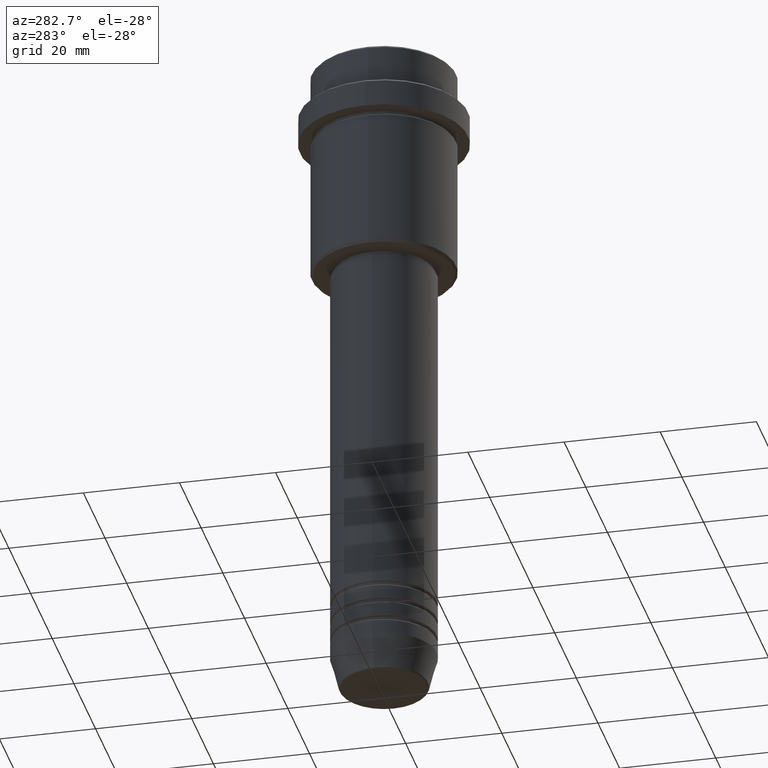
[diagram: clean part render]
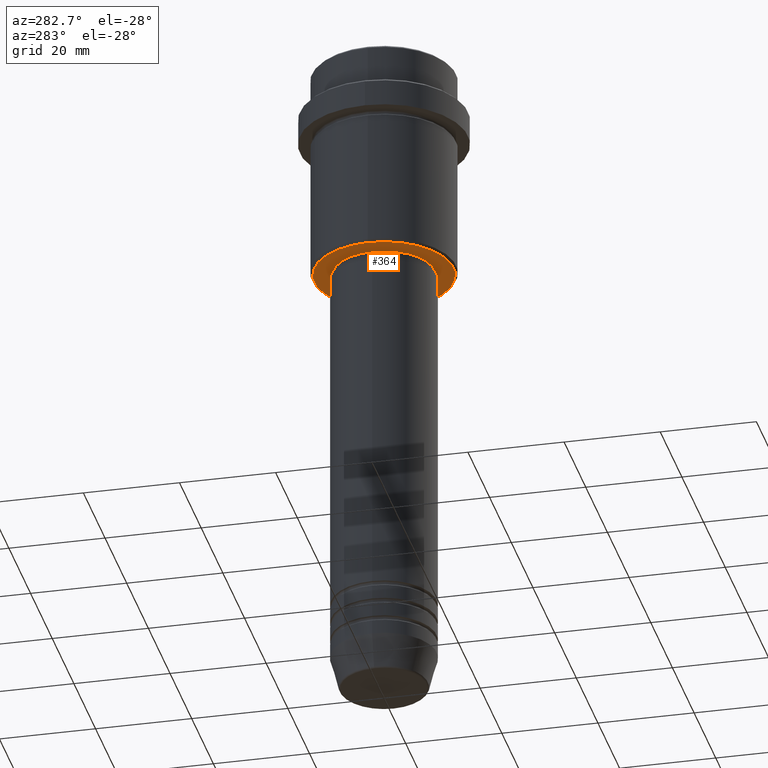
[diagram: same view with one face highlighted and labeled with its STEP entity id]
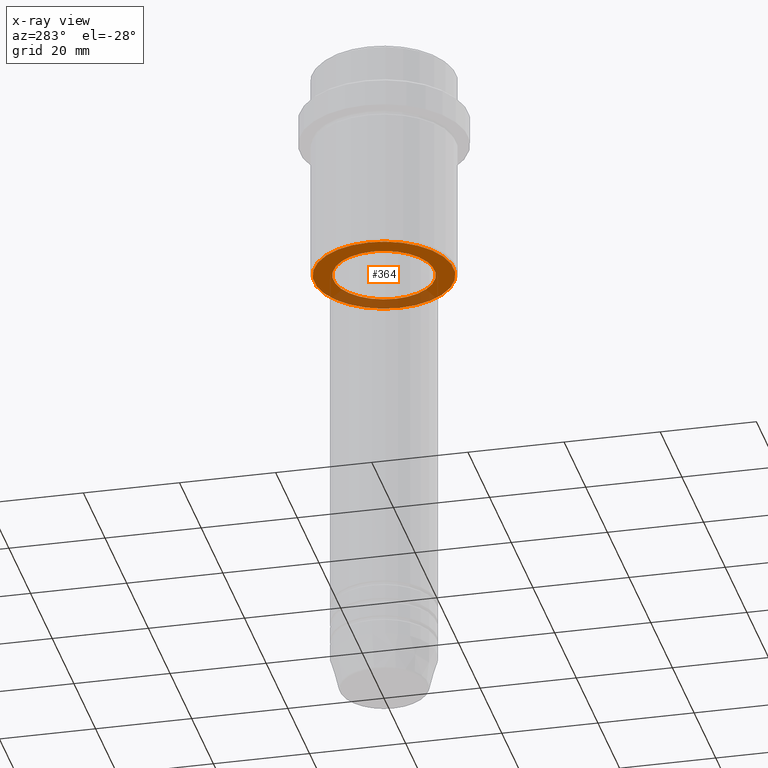
[diagram: x-ray of the same camera — body ghosted, the highlighted face saturated]
A machine part, auxiliary view. The second image highlights one B-rep face of the part: STEP entity #364.
The next image is the same camera in x-ray: the body ghosted, the highlighted face saturated — about 28% of this face is hidden behind the body in this view.
In plain terms, the highlighted planar face has unit normal (0, 0, -1).
Its self-contained STEP definition (entity closure, byte-faithful):
#20 = ORIENTED_EDGE ( 'NONE', *, *, #817, .T. ) ;
#113 = DIRECTION ( 'NONE',  ( -0.000000000000000000, -0.000000000000000000, 1.000000000000000000 ) ) ;
#163 = EDGE_LOOP ( 'NONE', ( #680, #859 ) ) ;
#168 = EDGE_CURVE ( 'NONE', #354, #1177, #1265, .T. ) ;
#174 = CARTESIAN_POINT ( 'NONE',  ( 0.000000000000000000, 15.00000000000000000, -45.00000000000001421 ) ) ;
#189 = CARTESIAN_POINT ( 'NONE',  ( -10.49999999999999289, 1.285879139104720042E-15, -45.00000000000001421 ) ) ;
#208 = DIRECTION ( 'NONE',  ( 1.000000000000000000, 0.000000000000000000, 0.000000000000000000 ) ) ;
#238 = EDGE_LOOP ( 'NONE', ( #312, #20 ) ) ;
#261 = CARTESIAN_POINT ( 'NONE',  ( 0.000000000000000000, 0.000000000000000000, -45.00000000000001421 ) ) ;
#293 = CIRCLE ( 'NONE', #1316, 14.49999999999999645 ) ;
#312 = ORIENTED_EDGE ( 'NONE', *, *, #598, .T. ) ;
#354 = VERTEX_POINT ( 'NONE', #815 ) ;
#364 = ADVANCED_FACE ( 'NONE', ( #571, #1073 ), #857, .T. ) ;
#505 = VERTEX_POINT ( 'NONE', #950 ) ;
#530 = DIRECTION ( 'NONE',  ( 0.000000000000000000, 0.000000000000000000, -1.000000000000000000 ) ) ;
#564 = AXIS2_PLACEMENT_3D ( 'NONE', #261, #1022, #1259 ) ;
#571 = FACE_OUTER_BOUND ( 'NONE', #238, .T. ) ;
#586 = CIRCLE ( 'NONE', #564, 14.49999999999999645 ) ;
#598 = EDGE_CURVE ( 'NONE', #1282, #505, #586, .T. ) ;
#624 = CARTESIAN_POINT ( 'NONE',  ( 0.000000000000000000, 0.000000000000000000, -45.00000000000001421 ) ) ;
#680 = ORIENTED_EDGE ( 'NONE', *, *, #168, .T. ) ;
#709 = DIRECTION ( 'NONE',  ( -1.000000000000000000, 0.000000000000000000, -0.000000000000000000 ) ) ;
#722 = DIRECTION ( 'NONE',  ( 0.000000000000000000, 0.000000000000000000, -1.000000000000000000 ) ) ;
#815 = CARTESIAN_POINT ( 'NONE',  ( 10.49999999999999289, 0.000000000000000000, -45.00000000000001421 ) ) ;
#817 = EDGE_CURVE ( 'NONE', #505, #1282, #293, .T. ) ;
#857 = PLANE ( 'NONE',  #941 ) ;
#859 = ORIENTED_EDGE ( 'NONE', *, *, #1209, .T. ) ;
#867 = CARTESIAN_POINT ( 'NONE',  ( 0.000000000000000000, 0.000000000000000000, -45.00000000000001421 ) ) ;
#879 = AXIS2_PLACEMENT_3D ( 'NONE', #624, #113, #208 ) ;
#941 = AXIS2_PLACEMENT_3D ( 'NONE', #174, #722, #709 ) ;
#950 = CARTESIAN_POINT ( 'NONE',  ( -14.49999999999999645, 1.806354028742345802E-15, -45.00000000000001421 ) ) ;
#951 = CIRCLE ( 'NONE', #1380, 10.49999999999999289 ) ;
#988 = DIRECTION ( 'NONE',  ( 1.000000000000000000, 0.000000000000000000, 0.000000000000000000 ) ) ;
#1022 = DIRECTION ( 'NONE',  ( 0.000000000000000000, 0.000000000000000000, -1.000000000000000000 ) ) ;
#1070 = CARTESIAN_POINT ( 'NONE',  ( 0.000000000000000000, 0.000000000000000000, -45.00000000000001421 ) ) ;
#1073 = FACE_BOUND ( 'NONE', #163, .T. ) ;
#1077 = CARTESIAN_POINT ( 'NONE',  ( 14.49999999999999645, 0.000000000000000000, -45.00000000000001421 ) ) ;
#1177 = VERTEX_POINT ( 'NONE', #189 ) ;
#1209 = EDGE_CURVE ( 'NONE', #1177, #354, #951, .T. ) ;
#1259 = DIRECTION ( 'NONE',  ( -1.000000000000000000, 0.000000000000000000, 0.000000000000000000 ) ) ;
#1265 = CIRCLE ( 'NONE', #879, 10.49999999999999289 ) ;
#1282 = VERTEX_POINT ( 'NONE', #1077 ) ;
#1305 = DIRECTION ( 'NONE',  ( -1.000000000000000000, 0.000000000000000000, 0.000000000000000000 ) ) ;
#1308 = DIRECTION ( 'NONE',  ( -0.000000000000000000, -0.000000000000000000, 1.000000000000000000 ) ) ;
#1316 = AXIS2_PLACEMENT_3D ( 'NONE', #867, #530, #1305 ) ;
#1380 = AXIS2_PLACEMENT_3D ( 'NONE', #1070, #1308, #988 ) ;